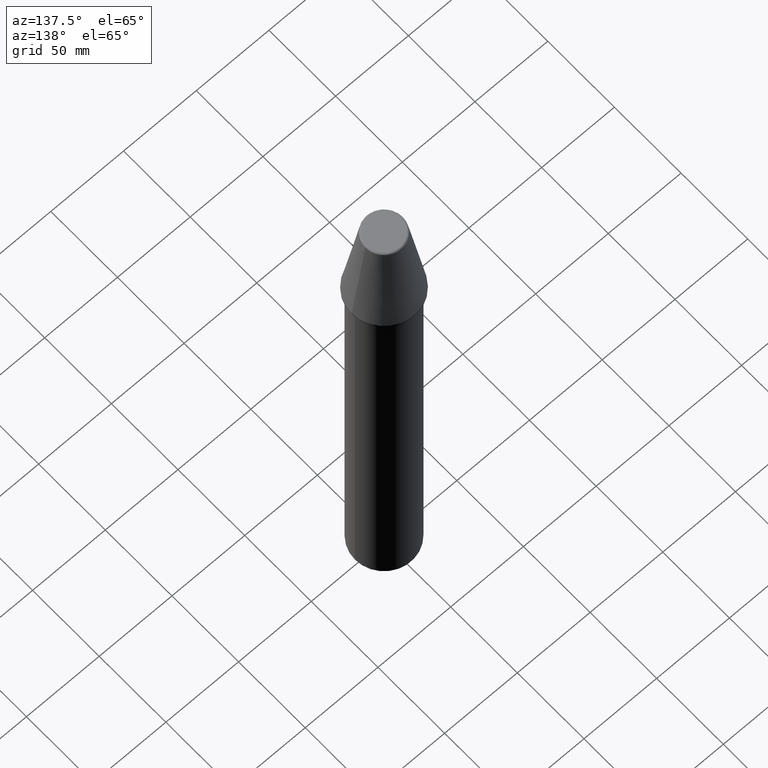
[diagram: clean part render]
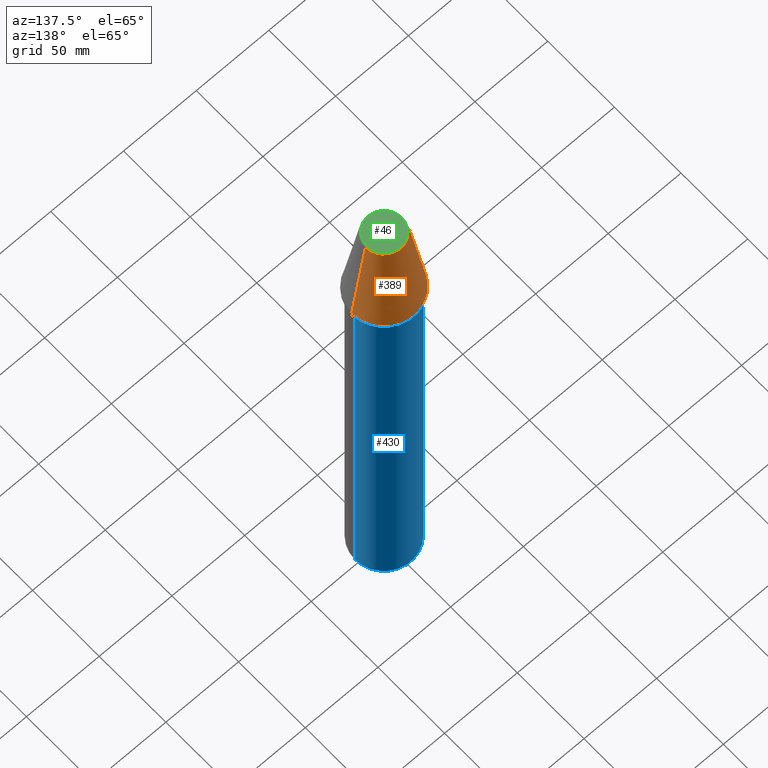
[diagram: same view with three faces highlighted in distinct colors, each labeled with its STEP entity id]
A machine part, auxiliary view with three faces highlighted in distinct colors.
Their STEP definitions:

[orange] entity #389 — the highlighted conical surface has half-angle 8.297 deg.
#3 = LINE ( 'NONE', #332, #277 ) ;
#10 = CONICAL_SURFACE ( 'NONE', #218, 22.22500000000000100, 0.1448138077659779600 ) ;
#17 = VERTEX_POINT ( 'NONE', #385 ) ;
#23 = VERTEX_POINT ( 'NONE', #388 ) ;
#32 = EDGE_LOOP ( 'NONE', ( #79, #411, #173, #90 ) ) ;
#66 = CIRCLE ( 'NONE', #427, 12.81220206894352900 ) ;
#72 = DIRECTION ( 'NONE',  ( -1.000000000000000000, 0.0000000000000000000, 0.0000000000000000000 ) ) ;
#73 = DIRECTION ( 'NONE',  ( 0.0000000000000000000, 0.0000000000000000000, -1.000000000000000000 ) ) ;
#74 = CARTESIAN_POINT ( 'NONE',  ( 0.0000000000000000000, 0.0000000000000000000, 300.0000000000000600 ) ) ;
#79 = ORIENTED_EDGE ( 'NONE', *, *, #176, .T. ) ;
#86 = CARTESIAN_POINT ( 'NONE',  ( 22.22499999999999400, 2.721777511104991700E-015, 300.0000000000000600 ) ) ;
#90 = ORIENTED_EDGE ( 'NONE', *, *, #95, .F. ) ;
#95 = EDGE_CURVE ( 'NONE', #17, #325, #3, .T. ) ;
#134 = DIRECTION ( 'NONE',  ( -1.000000000000000000, 0.0000000000000000000, 0.0000000000000000000 ) ) ;
#136 = DIRECTION ( 'NONE',  ( 0.0000000000000000000, 0.0000000000000000000, -1.000000000000000000 ) ) ;
#143 = CIRCLE ( 'NONE', #422, 22.22499999999999800 ) ;
#145 = CARTESIAN_POINT ( 'NONE',  ( 0.0000000000000000000, 0.0000000000000000000, 300.0000000000000000 ) ) ;
#149 = VECTOR ( 'NONE', #303, 1000.000000000000100 ) ;
#167 = EDGE_CURVE ( 'NONE', #23, #413, #250, .T. ) ;
#173 = ORIENTED_EDGE ( 'NONE', *, *, #431, .F. ) ;
#176 = EDGE_CURVE ( 'NONE', #17, #23, #66, .T. ) ;
#191 = CARTESIAN_POINT ( 'NONE',  ( -22.22499999999999400, 0.0000000000000000000, 300.0000000000000600 ) ) ;
#218 = AXIS2_PLACEMENT_3D ( 'NONE', #145, #136, #134 ) ;
#250 = LINE ( 'NONE', #353, #149 ) ;
#272 = DIRECTION ( 'NONE',  ( -1.000000000000000000, 0.0000000000000000000, 0.0000000000000000000 ) ) ;
#273 = DIRECTION ( 'NONE',  ( 0.0000000000000000000, 0.0000000000000000000, -1.000000000000000000 ) ) ;
#275 = CARTESIAN_POINT ( 'NONE',  ( 0.0000000000000000000, 0.0000000000000000000, 364.5443081893873200 ) ) ;
#277 = VECTOR ( 'NONE', #346, 1000.000000000000100 ) ;
#299 = FACE_OUTER_BOUND ( 'NONE', #32, .T. ) ;
#303 = DIRECTION ( 'NONE',  ( 0.1443081888917994200, 1.767265616170938000E-017, -0.9895327920886546300 ) ) ;
#325 = VERTEX_POINT ( 'NONE', #191 ) ;
#332 = CARTESIAN_POINT ( 'NONE',  ( -22.22500000000000100, 0.0000000000000000000, 300.0000000000000000 ) ) ;
#346 = DIRECTION ( 'NONE',  ( -0.1443081888917994200, 0.0000000000000000000, -0.9895327920886546300 ) ) ;
#353 = CARTESIAN_POINT ( 'NONE',  ( 22.22500000000000100, 2.721777511104992800E-015, 300.0000000000000000 ) ) ;
#385 = CARTESIAN_POINT ( 'NONE',  ( -12.81220206913550500, 0.0000000000000000000, 364.5443081893798200 ) ) ;
#388 = CARTESIAN_POINT ( 'NONE',  ( 12.81220206913804400, -1.313912403005700600E-009, 364.5443081893624800 ) ) ;
#389 = ADVANCED_FACE ( 'NONE', ( #299 ), #10, .T. ) ;
#411 = ORIENTED_EDGE ( 'NONE', *, *, #167, .T. ) ;
#413 = VERTEX_POINT ( 'NONE', #86 ) ;
#422 = AXIS2_PLACEMENT_3D ( 'NONE', #74, #73, #72 ) ;
#427 = AXIS2_PLACEMENT_3D ( 'NONE', #275, #273, #272 ) ;
#431 = EDGE_CURVE ( 'NONE', #325, #413, #143, .T. ) ;

[blue] entity #430 — the highlighted cylindrical surface (partial cylindrical patch) has radius 20 mm, axis along (0, 0, -1).
#26 = CIRCLE ( 'NONE', #162, 20.00000000000000000 ) ;
#50 = CYLINDRICAL_SURFACE ( 'NONE', #423, 20.00000000000000000 ) ;
#53 = DIRECTION ( 'NONE',  ( -1.000000000000000000, 0.0000000000000000000, 0.0000000000000000000 ) ) ;
#54 = VECTOR ( 'NONE', #207, 1000.000000000000000 ) ;
#63 = VERTEX_POINT ( 'NONE', #135 ) ;
#77 = CARTESIAN_POINT ( 'NONE',  ( 0.0000000000000000000, 0.0000000000000000000, 298.0000000000000000 ) ) ;
#94 = DIRECTION ( 'NONE',  ( 0.0000000000000000000, 0.0000000000000000000, -1.000000000000000000 ) ) ;
#124 = CARTESIAN_POINT ( 'NONE',  ( 20.00000000000000000, 0.0000000000000000000, 1.000000000000000900 ) ) ;
#135 = CARTESIAN_POINT ( 'NONE',  ( -20.00000000000000000, 0.0000000000000000000, 297.9999999999999400 ) ) ;
#139 = EDGE_CURVE ( 'NONE', #396, #342, #421, .T. ) ;
#144 = ORIENTED_EDGE ( 'NONE', *, *, #139, .T. ) ;
#157 = AXIS2_PLACEMENT_3D ( 'NONE', #298, #297, #296 ) ;
#162 = AXIS2_PLACEMENT_3D ( 'NONE', #178, #177, #175 ) ;
#175 = DIRECTION ( 'NONE',  ( -1.000000000000000000, 0.0000000000000000000, 0.0000000000000000000 ) ) ;
#177 = DIRECTION ( 'NONE',  ( 0.0000000000000000000, 0.0000000000000000000, -1.000000000000000000 ) ) ;
#178 = CARTESIAN_POINT ( 'NONE',  ( 0.0000000000000000000, 0.0000000000000000000, 297.9999999999999400 ) ) ;
#197 = CARTESIAN_POINT ( 'NONE',  ( -20.00000000000000000, 2.449293598294706500E-015, 1.000000000000000900 ) ) ;
#199 = CARTESIAN_POINT ( 'NONE',  ( 20.00000000000000000, 2.449293598294706500E-015, 297.9999999999999400 ) ) ;
#207 = DIRECTION ( 'NONE',  ( 0.0000000000000000000, 0.0000000000000000000, -1.000000000000000000 ) ) ;
#210 = CARTESIAN_POINT ( 'NONE',  ( -20.00000000000000000, 0.0000000000000000000, 298.0000000000000000 ) ) ;
#211 = FACE_OUTER_BOUND ( 'NONE', #339, .T. ) ;
#236 = EDGE_CURVE ( 'NONE', #315, #396, #365, .T. ) ;
#258 = DIRECTION ( 'NONE',  ( 0.0000000000000000000, 0.0000000000000000000, -1.000000000000000000 ) ) ;
#265 = CARTESIAN_POINT ( 'NONE',  ( 20.00000000000000000, 2.449293598294706500E-015, 298.0000000000000000 ) ) ;
#286 = LINE ( 'NONE', #210, #54 ) ;
#287 = EDGE_CURVE ( 'NONE', #63, #342, #286, .T. ) ;
#296 = DIRECTION ( 'NONE',  ( -1.000000000000000000, 0.0000000000000000000, 0.0000000000000000000 ) ) ;
#297 = DIRECTION ( 'NONE',  ( -0.0000000000000000000, -0.0000000000000000000, 1.000000000000000000 ) ) ;
#298 = CARTESIAN_POINT ( 'NONE',  ( 0.0000000000000000000, 0.0000000000000000000, 1.000000000000000900 ) ) ;
#315 = VERTEX_POINT ( 'NONE', #199 ) ;
#327 = ORIENTED_EDGE ( 'NONE', *, *, #287, .F. ) ;
#336 = EDGE_CURVE ( 'NONE', #63, #315, #26, .T. ) ;
#338 = ORIENTED_EDGE ( 'NONE', *, *, #236, .T. ) ;
#339 = EDGE_LOOP ( 'NONE', ( #418, #338, #144, #327 ) ) ;
#342 = VERTEX_POINT ( 'NONE', #197 ) ;
#349 = VECTOR ( 'NONE', #258, 1000.000000000000000 ) ;
#365 = LINE ( 'NONE', #265, #349 ) ;
#396 = VERTEX_POINT ( 'NONE', #124 ) ;
#418 = ORIENTED_EDGE ( 'NONE', *, *, #336, .T. ) ;
#421 = CIRCLE ( 'NONE', #157, 20.00000000000000000 ) ;
#423 = AXIS2_PLACEMENT_3D ( 'NONE', #77, #94, #53 ) ;
#430 = ADVANCED_FACE ( 'NONE', ( #211 ), #50, .T. ) ;

[green] entity #46 — the highlighted planar face has unit normal (0, 0, 1).
#12 = EDGE_CURVE ( 'NONE', #268, #49, #290, .T. ) ;
#46 = ADVANCED_FACE ( 'NONE', ( #154 ), #395, .T. ) ;
#49 = VERTEX_POINT ( 'NONE', #366 ) ;
#76 = EDGE_CURVE ( 'NONE', #49, #268, #93, .T. ) ;
#93 =( BOUNDED_CURVE ( )  B_SPLINE_CURVE ( 3, ( #372, #362, #357, #356 ),
 .UNSPECIFIED., .F., .F. ) 
 B_SPLINE_CURVE_WITH_KNOTS ( ( 4, 4 ),
 ( 0.0000000000000000000, 1.000000000000000000 ),
 .UNSPECIFIED. ) 
 CURVE ( )  GEOMETRIC_REPRESENTATION_ITEM ( )  RATIONAL_B_SPLINE_CURVE ( ( 0.9606698253833687600, 0.3202232751277893100, 0.3202232751277893100, 0.9606698253833687600 ) ) 
 REPRESENTATION_ITEM ( '' )  );
#154 = FACE_OUTER_BOUND ( 'NONE', #361, .T. ) ;
#253 = CARTESIAN_POINT ( 'NONE',  ( -11.82266927519743800, 0.0000000000000000000, 365.3999999998375200 ) ) ;
#268 = VERTEX_POINT ( 'NONE', #253 ) ;
#269 = ORIENTED_EDGE ( 'NONE', *, *, #12, .F. ) ;
#289 = AXIS2_PLACEMENT_3D ( 'NONE', #374, #369, #368 ) ;
#290 =( BOUNDED_CURVE ( )  B_SPLINE_CURVE ( 3, ( #403, #402, #391, #387 ),
 .UNSPECIFIED., .F., .F. ) 
 B_SPLINE_CURVE_WITH_KNOTS ( ( 4, 4 ),
 ( 0.0000000000000000000, 1.000000000000000000 ),
 .UNSPECIFIED. ) 
 CURVE ( )  GEOMETRIC_REPRESENTATION_ITEM ( )  RATIONAL_B_SPLINE_CURVE ( ( 0.9606698253833690900, 0.3202232751277894800, 0.3202232751277894800, 0.9606698253833690900 ) ) 
 REPRESENTATION_ITEM ( '' )  );
#356 = CARTESIAN_POINT ( 'NONE',  ( -11.82266927519743800, 0.0000000000000000000, 365.3999999998375200 ) ) ;
#357 = CARTESIAN_POINT ( 'NONE',  ( -11.82266927530474000, -23.64533854989944600, 365.3999999997293500 ) ) ;
#361 = EDGE_LOOP ( 'NONE', ( #269, #420 ) ) ;
#362 = CARTESIAN_POINT ( 'NONE',  ( 11.82266927530474000, -23.64533854989944600, 365.3999999997293500 ) ) ;
#366 = CARTESIAN_POINT ( 'NONE',  ( 11.82266927519743600, -2.424870002449423800E-010, 365.3999999998375200 ) ) ;
#368 = DIRECTION ( 'NONE',  ( 1.000000000000000000, 0.0000000000000000000, -0.0000000000000000000 ) ) ;
#369 = DIRECTION ( 'NONE',  ( 0.0000000000000000000, 0.0000000000000000000, 1.000000000000000000 ) ) ;
#372 = CARTESIAN_POINT ( 'NONE',  ( 11.82266927519743600, -2.424870002449423800E-010, 365.3999999998375200 ) ) ;
#374 = CARTESIAN_POINT ( 'NONE',  ( -11.96454130800000100, -11.96454130800000100, 365.3999999999999800 ) ) ;
#387 = CARTESIAN_POINT ( 'NONE',  ( 11.82266927519743600, -2.424870002449423800E-010, 365.3999999998375200 ) ) ;
#391 = CARTESIAN_POINT ( 'NONE',  ( 11.82266927530473700, 23.64533854989944200, 365.3999999997292900 ) ) ;
#395 = PLANE ( 'NONE',  #289 ) ;
#402 = CARTESIAN_POINT ( 'NONE',  ( -11.82266927530473700, 23.64533854989944200, 365.3999999997292900 ) ) ;
#403 = CARTESIAN_POINT ( 'NONE',  ( -11.82266927519743600, 0.0000000000000000000, 365.3999999998375200 ) ) ;
#420 = ORIENTED_EDGE ( 'NONE', *, *, #76, .F. ) ;